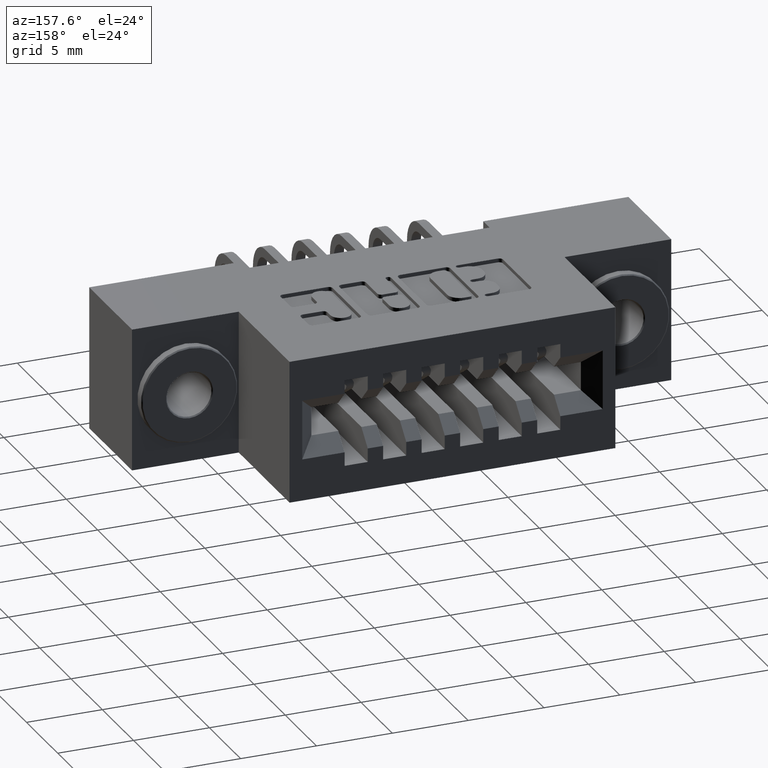
[diagram: clean part render]
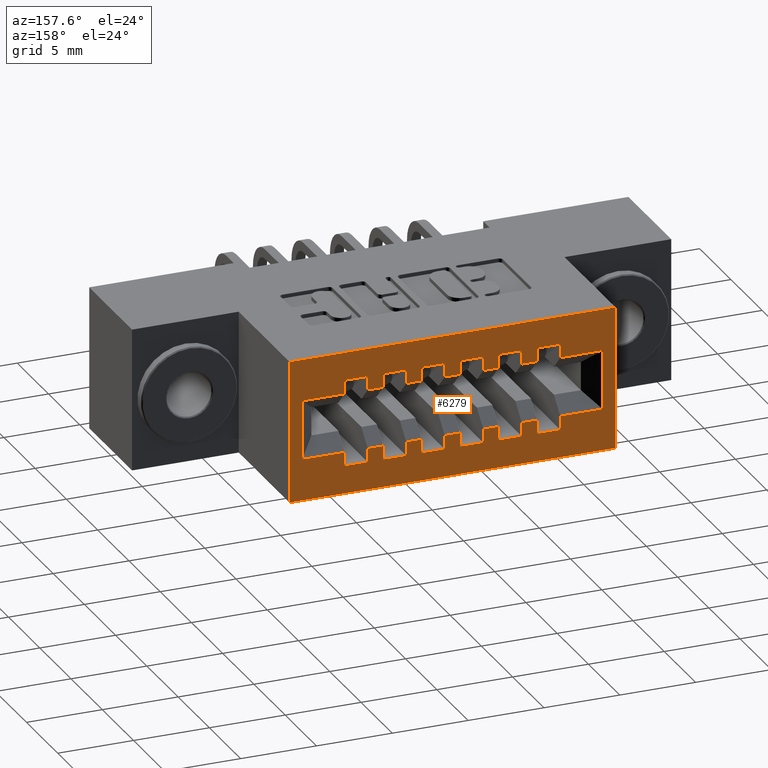
[diagram: same view with one face highlighted and labeled with its STEP entity id]
A machine part, auxiliary view. The second image highlights one B-rep face of the part: STEP entity #6279.
In plain terms, the highlighted planar face has unit normal (0, -1, 0).
Its self-contained STEP definition (entity closure, byte-faithful):
#23 = ORIENTED_EDGE ( 'NONE', *, *, #8180, .T. ) ;
#24 = CARTESIAN_POINT ( 'NONE',  ( 0.5200000000000000200, 0.5899999999999999700, -0.2975000000000000400 ) ) ;
#32 = CARTESIAN_POINT ( 'NONE',  ( 0.4200000000000000400, 0.5899999999999999700, -0.2975000000000000400 ) ) ;
#67 = DIRECTION ( 'NONE',  ( -1.000000000000000000, -0.0000000000000000000, -0.0000000000000000000 ) ) ;
#73 = EDGE_CURVE ( 'NONE', #4876, #8414, #7106, .T. ) ;
#99 = LINE ( 'NONE', #1029, #328 ) ;
#110 = EDGE_CURVE ( 'NONE', #3210, #6223, #1346, .T. ) ;
#115 = EDGE_CURVE ( 'NONE', #4781, #5817, #3236, .T. ) ;
#116 = ORIENTED_EDGE ( 'NONE', *, *, #7833, .F. ) ;
#152 = CARTESIAN_POINT ( 'NONE',  ( 0.0000000000000000000, 0.5899999999999999700, -0.3700000000000000000 ) ) ;
#216 = CARTESIAN_POINT ( 'NONE',  ( 0.4200000000000000400, 0.5899999999999999700, -0.2220000000000001100 ) ) ;
#236 = CARTESIAN_POINT ( 'NONE',  ( 0.4200000000000000400, 0.5899999999999999700, -0.1479999999999999100 ) ) ;
#259 = CARTESIAN_POINT ( 'NONE',  ( 0.0000000000000000000, 0.5899999999999999700, -0.2620000000000002900 ) ) ;
#264 = VECTOR ( 'NONE', #5571, 39.37007874015748100 ) ;
#289 = VECTOR ( 'NONE', #5905, 39.37007874015748100 ) ;
#301 = VECTOR ( 'NONE', #823, 39.37007874015748100 ) ;
#309 = VERTEX_POINT ( 'NONE', #6603 ) ;
#316 = VERTEX_POINT ( 'NONE', #4053 ) ;
#328 = VECTOR ( 'NONE', #1168, 39.37007874015748100 ) ;
#329 = DIRECTION ( 'NONE',  ( -0.0000000000000000000, -0.0000000000000000000, 1.000000000000000000 ) ) ;
#344 = DIRECTION ( 'NONE',  ( -0.0000000000000000000, -0.0000000000000000000, 1.000000000000000000 ) ) ;
#375 = DIRECTION ( 'NONE',  ( -0.0000000000000000000, -0.0000000000000000000, 1.000000000000000000 ) ) ;
#380 = CARTESIAN_POINT ( 'NONE',  ( 0.7199999999999998600, 0.5899999999999999700, -0.2220000000000001400 ) ) ;
#428 = VERTEX_POINT ( 'NONE', #1090 ) ;
#429 = CARTESIAN_POINT ( 'NONE',  ( 0.8799999999999998900, 0.5899999999999999700, -0.2220000000000002000 ) ) ;
#530 = VERTEX_POINT ( 'NONE', #32 ) ;
#534 = VECTOR ( 'NONE', #1487, 39.37007874015748100 ) ;
#536 = VERTEX_POINT ( 'NONE', #8925 ) ;
#545 = LINE ( 'NONE', #3649, #4085 ) ;
#584 = VECTOR ( 'NONE', #2338, 39.37007874015748100 ) ;
#599 = ORIENTED_EDGE ( 'NONE', *, *, #5246, .T. ) ;
#601 = VERTEX_POINT ( 'NONE', #6163 ) ;
#613 = CARTESIAN_POINT ( 'NONE',  ( 0.6200000000000000000, 0.5899999999999999700, -0.2620000000000002900 ) ) ;
#653 = ORIENTED_EDGE ( 'NONE', *, *, #3815, .T. ) ;
#660 = DIRECTION ( 'NONE',  ( 0.0000000000000000000, 0.0000000000000000000, 1.000000000000000000 ) ) ;
#678 = DIRECTION ( 'NONE',  ( 1.000000000000000000, 0.0000000000000000000, 0.0000000000000000000 ) ) ;
#694 = VERTEX_POINT ( 'NONE', #3997 ) ;
#749 = CARTESIAN_POINT ( 'NONE',  ( 0.5200000000000000200, 0.5899999999999999700, -0.1479999999999999100 ) ) ;
#757 = EDGE_CURVE ( 'NONE', #4395, #5679, #7730, .T. ) ;
#758 = VECTOR ( 'NONE', #5631, 39.37007874015748100 ) ;
#759 = CARTESIAN_POINT ( 'NONE',  ( 0.0000000000000000000, 0.5899999999999999700, -0.2620000000000002900 ) ) ;
#813 = EDGE_CURVE ( 'NONE', #7612, #4637, #6894, .T. ) ;
#821 = EDGE_CURVE ( 'NONE', #1638, #6857, #1351, .T. ) ;
#823 = DIRECTION ( 'NONE',  ( 0.0000000000000000000, 0.0000000000000000000, 1.000000000000000000 ) ) ;
#832 = EDGE_CURVE ( 'NONE', #4395, #7187, #8426, .T. ) ;
#849 = VECTOR ( 'NONE', #329, 39.37007874015748100 ) ;
#868 = CARTESIAN_POINT ( 'NONE',  ( 0.6200000000000000000, 0.5899999999999999700, -0.1080000000000000500 ) ) ;
#947 = ORIENTED_EDGE ( 'NONE', *, *, #2589, .T. ) ;
#967 = VECTOR ( 'NONE', #660, 39.37007874015748100 ) ;
#983 = ORIENTED_EDGE ( 'NONE', *, *, #4199, .F. ) ;
#989 = LINE ( 'NONE', #8532, #534 ) ;
#1008 = DIRECTION ( 'NONE',  ( 1.000000000000000000, 0.0000000000000000000, 0.0000000000000000000 ) ) ;
#1010 = VECTOR ( 'NONE', #5092, 39.37007874015748100 ) ;
#1018 = CARTESIAN_POINT ( 'NONE',  ( 0.5800000000000000700, 0.5899999999999999700, -0.1479999999999999100 ) ) ;
#1029 = CARTESIAN_POINT ( 'NONE',  ( 0.7199999999999998600, 0.5899999999999999700, -0.07250000000000002300 ) ) ;
#1031 = CARTESIAN_POINT ( 'NONE',  ( 0.6200000000000000000, 0.5899999999999999700, -0.07250000000000000900 ) ) ;
#1034 = LINE ( 'NONE', #6443, #2735 ) ;
#1043 = LINE ( 'NONE', #1882, #6588 ) ;
#1045 = ORIENTED_EDGE ( 'NONE', *, *, #1803, .T. ) ;
#1050 = DIRECTION ( 'NONE',  ( 1.000000000000000000, -0.0000000000000000000, -0.0000000000000000000 ) ) ;
#1090 = CARTESIAN_POINT ( 'NONE',  ( 0.7799999999999999200, 0.5899999999999999700, -0.07250000000000002300 ) ) ;
#1094 = ORIENTED_EDGE ( 'NONE', *, *, #115, .T. ) ;
#1109 = LINE ( 'NONE', #5786, #6449 ) ;
#1168 = DIRECTION ( 'NONE',  ( 1.000000000000000000, -0.0000000000000000000, -0.0000000000000000000 ) ) ;
#1180 = DIRECTION ( 'NONE',  ( 1.000000000000000000, -0.0000000000000000000, -0.0000000000000000000 ) ) ;
#1221 = DIRECTION ( 'NONE',  ( 0.0000000000000000000, 0.0000000000000000000, 1.000000000000000000 ) ) ;
#1234 = LINE ( 'NONE', #1670, #4738 ) ;
#1246 = AXIS2_PLACEMENT_3D ( 'NONE', #2403, #2304, #2288 ) ;
#1339 = CARTESIAN_POINT ( 'NONE',  ( 0.8199999999999998400, 0.5899999999999999700, -0.07250000000000003700 ) ) ;
#1346 = LINE ( 'NONE', #4886, #6667 ) ;
#1351 = LINE ( 'NONE', #2203, #6672 ) ;
#1366 = CARTESIAN_POINT ( 'NONE',  ( 0.0000000000000000000, 0.5899999999999999700, -0.2620000000000002900 ) ) ;
#1412 = EDGE_CURVE ( 'NONE', #6135, #7302, #2362, .T. ) ;
#1423 = ORIENTED_EDGE ( 'NONE', *, *, #7155, .T. ) ;
#1432 = EDGE_LOOP ( 'NONE', ( #1596, #3708, #5509, #7339 ) ) ;
#1469 = VECTOR ( 'NONE', #6743, 39.37007874015748100 ) ;
#1477 = CARTESIAN_POINT ( 'NONE',  ( 0.6799999999999999400, 0.5899999999999999700, -0.2975000000000001000 ) ) ;
#1487 = DIRECTION ( 'NONE',  ( -1.000000000000000000, 0.0000000000000000000, 0.0000000000000000000 ) ) ;
#1506 = VERTEX_POINT ( 'NONE', #2653 ) ;
#1527 = CARTESIAN_POINT ( 'NONE',  ( 0.2770000000000000200, 0.5899999999999999700, -0.3700000000000000000 ) ) ;
#1548 = VECTOR ( 'NONE', #5280, 39.37007874015748100 ) ;
#1562 = LINE ( 'NONE', #3141, #6887 ) ;
#1564 = VECTOR ( 'NONE', #8660, 39.37007874015748100 ) ;
#1565 = LINE ( 'NONE', #1339, #8628 ) ;
#1566 = CARTESIAN_POINT ( 'NONE',  ( 0.4799999999999999800, 0.5899999999999999700, -0.2975000000000000400 ) ) ;
#1592 = CARTESIAN_POINT ( 'NONE',  ( 0.6200000000000000000, 0.5899999999999999700, -0.2220000000000001400 ) ) ;
#1596 = ORIENTED_EDGE ( 'NONE', *, *, #2661, .T. ) ;
#1615 = LINE ( 'NONE', #152, #8881 ) ;
#1638 = VERTEX_POINT ( 'NONE', #1566 ) ;
#1642 = LINE ( 'NONE', #8309, #5129 ) ;
#1652 = EDGE_CURVE ( 'NONE', #4876, #6741, #2245, .T. ) ;
#1670 = CARTESIAN_POINT ( 'NONE',  ( 0.0000000000000000000, 0.5899999999999999700, -0.2620000000000002900 ) ) ;
#1696 = VECTOR ( 'NONE', #5523, 39.37007874015748100 ) ;
#1752 = EDGE_CURVE ( 'NONE', #6223, #7243, #7085, .T. ) ;
#1756 = CARTESIAN_POINT ( 'NONE',  ( 0.9199999999999999300, 0.5899999999999999700, -0.1080000000000000500 ) ) ;
#1759 = LINE ( 'NONE', #8720, #8801 ) ;
#1766 = VECTOR ( 'NONE', #5024, 39.37007874015748100 ) ;
#1776 = VERTEX_POINT ( 'NONE', #5330 ) ;
#1786 = CARTESIAN_POINT ( 'NONE',  ( 0.8799999999999998900, 0.5899999999999999700, -0.2975000000000001000 ) ) ;
#1803 = EDGE_CURVE ( 'NONE', #7308, #6640, #1109, .T. ) ;
#1854 = DIRECTION ( 'NONE',  ( 0.0000000000000000000, 0.0000000000000000000, 1.000000000000000000 ) ) ;
#1882 = CARTESIAN_POINT ( 'NONE',  ( 0.6200000000000000000, 0.5899999999999999700, -0.1479999999999999400 ) ) ;
#1917 = LINE ( 'NONE', #5505, #1696 ) ;
#1950 = ORIENTED_EDGE ( 'NONE', *, *, #2114, .T. ) ;
#1966 = CARTESIAN_POINT ( 'NONE',  ( 0.6200000000000000000, 0.5899999999999999700, -0.07250000000000000900 ) ) ;
#2008 = CARTESIAN_POINT ( 'NONE',  ( 1.122999999999999800, 0.5899999999999999700, -0.3700000000000001600 ) ) ;
#2041 = CARTESIAN_POINT ( 'NONE',  ( 0.5200000000000000200, 0.5899999999999999700, -0.07249999999999999500 ) ) ;
#2069 = DIRECTION ( 'NONE',  ( 1.000000000000000000, -0.0000000000000000000, -0.0000000000000000000 ) ) ;
#2074 = LINE ( 'NONE', #6704, #7357 ) ;
#2101 = VERTEX_POINT ( 'NONE', #7889 ) ;
#2114 = EDGE_CURVE ( 'NONE', #8591, #6681, #4299, .T. ) ;
#2132 = EDGE_CURVE ( 'NONE', #8937, #5883, #545, .T. ) ;
#2150 = VECTOR ( 'NONE', #1180, 39.37007874015748100 ) ;
#2153 = EDGE_CURVE ( 'NONE', #309, #694, #5886, .T. ) ;
#2165 = DIRECTION ( 'NONE',  ( 1.000000000000000000, -0.0000000000000000000, -0.0000000000000000000 ) ) ;
#2195 = EDGE_CURVE ( 'NONE', #2457, #5363, #7287, .T. ) ;
#2203 = CARTESIAN_POINT ( 'NONE',  ( 0.4799999999999999800, 0.5899999999999999700, -0.2220000000000001100 ) ) ;
#2209 = LINE ( 'NONE', #3502, #264 ) ;
#2223 = ORIENTED_EDGE ( 'NONE', *, *, #3516, .T. ) ;
#2245 = LINE ( 'NONE', #236, #301 ) ;
#2278 = VECTOR ( 'NONE', #7780, 39.37007874015748100 ) ;
#2288 = DIRECTION ( 'NONE',  ( 0.0000000000000000000, -0.0000000000000000000, -1.000000000000000000 ) ) ;
#2297 = ORIENTED_EDGE ( 'NONE', *, *, #7723, .T. ) ;
#2304 = DIRECTION ( 'NONE',  ( 0.0000000000000000000, -1.000000000000000000, 0.0000000000000000000 ) ) ;
#2336 = DIRECTION ( 'NONE',  ( 1.000000000000000000, 0.0000000000000000000, 0.0000000000000000000 ) ) ;
#2338 = DIRECTION ( 'NONE',  ( 3.691686477924679500E-016, 0.0000000000000000000, 1.000000000000000000 ) ) ;
#2345 = ORIENTED_EDGE ( 'NONE', *, *, #6567, .T. ) ;
#2348 = CARTESIAN_POINT ( 'NONE',  ( 0.0000000000000000000, 0.5899999999999999700, -0.1080000000000000500 ) ) ;
#2362 = LINE ( 'NONE', #259, #5785 ) ;
#2403 = CARTESIAN_POINT ( 'NONE',  ( 0.0000000000000000000, 0.5899999999999999700, -0.3700000000000000000 ) ) ;
#2411 = ORIENTED_EDGE ( 'NONE', *, *, #5116, .F. ) ;
#2416 = PLANE ( 'NONE',  #1246 ) ;
#2457 = VERTEX_POINT ( 'NONE', #5788 ) ;
#2485 = VERTEX_POINT ( 'NONE', #3576 ) ;
#2488 = LINE ( 'NONE', #6244, #7725 ) ;
#2508 = LINE ( 'NONE', #7660, #2278 ) ;
#2518 = ORIENTED_EDGE ( 'NONE', *, *, #8457, .F. ) ;
#2523 = CARTESIAN_POINT ( 'NONE',  ( 0.8199999999999998400, 0.5899999999999999700, -0.1479999999999999400 ) ) ;
#2554 = LINE ( 'NONE', #6019, #7977 ) ;
#2556 = DIRECTION ( 'NONE',  ( -1.000000000000000000, 0.0000000000000000000, 0.0000000000000000000 ) ) ;
#2589 = EDGE_CURVE ( 'NONE', #3844, #316, #989, .T. ) ;
#2590 = DIRECTION ( 'NONE',  ( -0.0000000000000000000, -0.0000000000000000000, 1.000000000000000000 ) ) ;
#2629 = VECTOR ( 'NONE', #8717, 39.37007874015748100 ) ;
#2653 = CARTESIAN_POINT ( 'NONE',  ( 1.090000000000000100, 0.5899999999999999700, -0.1080000000000000500 ) ) ;
#2661 = EDGE_CURVE ( 'NONE', #309, #8783, #1759, .T. ) ;
#2669 = LINE ( 'NONE', #6729, #758 ) ;
#2714 = CARTESIAN_POINT ( 'NONE',  ( 0.0000000000000000000, 0.5899999999999999700, -0.1080000000000000500 ) ) ;
#2735 = VECTOR ( 'NONE', #6448, 39.37007874015748100 ) ;
#2769 = DIRECTION ( 'NONE',  ( -0.0000000000000000000, -0.0000000000000000000, 1.000000000000000000 ) ) ;
#2818 = CARTESIAN_POINT ( 'NONE',  ( 0.9799999999999999800, 0.5899999999999999700, -0.2975000000000001000 ) ) ;
#2849 = LINE ( 'NONE', #380, #6055 ) ;
#2863 = CARTESIAN_POINT ( 'NONE',  ( 0.8799999999999998900, 0.5899999999999999700, -0.2620000000000002900 ) ) ;
#2919 = EDGE_CURVE ( 'NONE', #7283, #5817, #1642, .T. ) ;
#3007 = DIRECTION ( 'NONE',  ( -1.000000000000000000, 0.0000000000000000000, 0.0000000000000000000 ) ) ;
#3033 = VECTOR ( 'NONE', #5485, 39.37007874015748100 ) ;
#3137 = VECTOR ( 'NONE', #5244, 39.37007874015748100 ) ;
#3141 = CARTESIAN_POINT ( 'NONE',  ( 0.4200000000000000400, 0.5899999999999999700, -0.2975000000000000400 ) ) ;
#3168 = ORIENTED_EDGE ( 'NONE', *, *, #821, .T. ) ;
#3170 = DIRECTION ( 'NONE',  ( 0.0000000000000000000, 0.0000000000000000000, 1.000000000000000000 ) ) ;
#3210 = VERTEX_POINT ( 'NONE', #4167 ) ;
#3224 = CARTESIAN_POINT ( 'NONE',  ( 0.8799999999999998900, 0.5899999999999999700, -0.07250000000000003700 ) ) ;
#3234 = VECTOR ( 'NONE', #3170, 39.37007874015748100 ) ;
#3236 = LINE ( 'NONE', #6419, #3033 ) ;
#3240 = DIRECTION ( 'NONE',  ( 1.000000000000000000, -0.0000000000000000000, -0.0000000000000000000 ) ) ;
#3254 = EDGE_CURVE ( 'NONE', #601, #2457, #2554, .T. ) ;
#3275 = EDGE_CURVE ( 'NONE', #7032, #5979, #4168, .T. ) ;
#3286 = CARTESIAN_POINT ( 'NONE',  ( 0.0000000000000000000, 0.5899999999999999700, -0.1080000000000000500 ) ) ;
#3290 = VECTOR ( 'NONE', #3007, 39.37007874015748100 ) ;
#3383 = VERTEX_POINT ( 'NONE', #7298 ) ;
#3388 = FACE_BOUND ( 'NONE', #7579, .T. ) ;
#3394 = VECTOR ( 'NONE', #5720, 39.37007874015748100 ) ;
#3396 = ORIENTED_EDGE ( 'NONE', *, *, #5875, .F. ) ;
#3463 = DIRECTION ( 'NONE',  ( 0.0000000000000000000, 0.0000000000000000000, 1.000000000000000000 ) ) ;
#3469 = VECTOR ( 'NONE', #2069, 39.37007874015748100 ) ;
#3494 = EDGE_CURVE ( 'NONE', #5363, #5876, #8283, .T. ) ;
#3502 = CARTESIAN_POINT ( 'NONE',  ( 0.6200000000000000000, 0.5899999999999999700, -0.2975000000000001000 ) ) ;
#3506 = ORIENTED_EDGE ( 'NONE', *, *, #7181, .F. ) ;
#3510 = DIRECTION ( 'NONE',  ( 1.000000000000000000, -0.0000000000000000000, -0.0000000000000000000 ) ) ;
#3516 = EDGE_CURVE ( 'NONE', #6808, #5494, #2209, .T. ) ;
#3545 = CARTESIAN_POINT ( 'NONE',  ( 0.6799999999999999400, 0.5899999999999999700, -0.2620000000000002900 ) ) ;
#3562 = CARTESIAN_POINT ( 'NONE',  ( 1.090000000000000100, 0.5899999999999999700, -0.3700000000000000000 ) ) ;
#3574 = DIRECTION ( 'NONE',  ( 0.0000000000000000000, 0.0000000000000000000, 1.000000000000000000 ) ) ;
#3576 = CARTESIAN_POINT ( 'NONE',  ( 0.3099999999999998300, 0.5899999999999999700, -0.2620000000000002900 ) ) ;
#3600 = VERTEX_POINT ( 'NONE', #8840 ) ;
#3612 = ORIENTED_EDGE ( 'NONE', *, *, #4249, .T. ) ;
#3649 = CARTESIAN_POINT ( 'NONE',  ( 0.0000000000000000000, 0.5899999999999999700, -0.1080000000000000500 ) ) ;
#3660 = EDGE_CURVE ( 'NONE', #7308, #1776, #6414, .T. ) ;
#3708 = ORIENTED_EDGE ( 'NONE', *, *, #7940, .F. ) ;
#3717 = ORIENTED_EDGE ( 'NONE', *, *, #1652, .F. ) ;
#3787 = VERTEX_POINT ( 'NONE', #5072 ) ;
#3815 = EDGE_CURVE ( 'NONE', #1506, #4781, #5119, .T. ) ;
#3821 = DIRECTION ( 'NONE',  ( 0.0000000000000000000, 0.0000000000000000000, 1.000000000000000000 ) ) ;
#3844 = VERTEX_POINT ( 'NONE', #868 ) ;
#3873 = EDGE_CURVE ( 'NONE', #316, #4637, #4701, .T. ) ;
#3919 = ORIENTED_EDGE ( 'NONE', *, *, #73, .T. ) ;
#3997 = CARTESIAN_POINT ( 'NONE',  ( 0.2770000000000000200, 0.5899999999999999700, -0.3700000000000000000 ) ) ;
#4005 = LINE ( 'NONE', #24, #2150 ) ;
#4053 = CARTESIAN_POINT ( 'NONE',  ( 0.5800000000000000700, 0.5899999999999999700, -0.1080000000000000500 ) ) ;
#4069 = ORIENTED_EDGE ( 'NONE', *, *, #6822, .T. ) ;
#4074 = CARTESIAN_POINT ( 'NONE',  ( 0.7199999999999998600, 0.5899999999999999700, -0.2620000000000002900 ) ) ;
#4085 = VECTOR ( 'NONE', #8437, 39.37007874015748100 ) ;
#4089 = CARTESIAN_POINT ( 'NONE',  ( 0.8199999999999998400, 0.5899999999999999700, -0.1080000000000000500 ) ) ;
#4101 = EDGE_CURVE ( 'NONE', #530, #5942, #6406, .T. ) ;
#4130 = ORIENTED_EDGE ( 'NONE', *, *, #2132, .T. ) ;
#4167 = CARTESIAN_POINT ( 'NONE',  ( 0.9199999999999999300, 0.5899999999999999700, -0.2975000000000001000 ) ) ;
#4168 = LINE ( 'NONE', #4917, #5753 ) ;
#4199 = EDGE_CURVE ( 'NONE', #3600, #5876, #2074, .T. ) ;
#4222 = CARTESIAN_POINT ( 'NONE',  ( 0.5200000000000000200, 0.5899999999999999700, -0.07249999999999999500 ) ) ;
#4232 = CARTESIAN_POINT ( 'NONE',  ( 0.7799999999999999200, 0.5899999999999999700, -0.2620000000000002900 ) ) ;
#4238 = ORIENTED_EDGE ( 'NONE', *, *, #6320, .F. ) ;
#4249 = EDGE_CURVE ( 'NONE', #7187, #3383, #6710, .T. ) ;
#4266 = VECTOR ( 'NONE', #8672, 39.37007874015748100 ) ;
#4299 = LINE ( 'NONE', #4387, #6118 ) ;
#4313 = VECTOR ( 'NONE', #1221, 39.37007874015748100 ) ;
#4387 = CARTESIAN_POINT ( 'NONE',  ( 0.5800000000000000700, 0.5899999999999999700, -0.2220000000000001100 ) ) ;
#4395 = VERTEX_POINT ( 'NONE', #5762 ) ;
#4403 = EDGE_CURVE ( 'NONE', #3210, #6813, #2669, .T. ) ;
#4423 = LINE ( 'NONE', #1592, #4642 ) ;
#4492 = ORIENTED_EDGE ( 'NONE', *, *, #3254, .T. ) ;
#4516 = DIRECTION ( 'NONE',  ( -1.000000000000000000, 0.0000000000000000000, 0.0000000000000000000 ) ) ;
#4587 = VECTOR ( 'NONE', #3821, 39.37007874015748100 ) ;
#4614 = CARTESIAN_POINT ( 'NONE',  ( 0.4200000000000000400, 0.5899999999999999700, -0.1080000000000000500 ) ) ;
#4637 = VERTEX_POINT ( 'NONE', #8206 ) ;
#4642 = VECTOR ( 'NONE', #2590, 39.37007874015748100 ) ;
#4681 = VECTOR ( 'NONE', #3574, 39.37007874015748100 ) ;
#4682 = ORIENTED_EDGE ( 'NONE', *, *, #3873, .T. ) ;
#4701 = LINE ( 'NONE', #1018, #967 ) ;
#4738 = VECTOR ( 'NONE', #5101, 39.37007874015748100 ) ;
#4774 = ORIENTED_EDGE ( 'NONE', *, *, #6785, .T. ) ;
#4781 = VERTEX_POINT ( 'NONE', #5340 ) ;
#4790 = EDGE_CURVE ( 'NONE', #6681, #8486, #6725, .T. ) ;
#4822 = CARTESIAN_POINT ( 'NONE',  ( 0.8199999999999998400, 0.5899999999999999700, -0.2975000000000001000 ) ) ;
#4859 = VECTOR ( 'NONE', #2556, 39.37007874015748100 ) ;
#4876 = VERTEX_POINT ( 'NONE', #4614 ) ;
#4886 = CARTESIAN_POINT ( 'NONE',  ( 0.9199999999999999300, 0.5899999999999999700, -0.2975000000000001000 ) ) ;
#4907 = CARTESIAN_POINT ( 'NONE',  ( 0.9799999999999999800, 0.5899999999999999700, -0.2220000000000002000 ) ) ;
#4917 = CARTESIAN_POINT ( 'NONE',  ( 0.0000000000000000000, 0.5899999999999999700, -0.1080000000000000500 ) ) ;
#4939 = ORIENTED_EDGE ( 'NONE', *, *, #8732, .T. ) ;
#4941 = DIRECTION ( 'NONE',  ( -0.0000000000000000000, -0.0000000000000000000, 1.000000000000000000 ) ) ;
#4999 = ORIENTED_EDGE ( 'NONE', *, *, #757, .F. ) ;
#5001 = CARTESIAN_POINT ( 'NONE',  ( 0.4799999999999999800, 0.5899999999999999700, -0.1080000000000000500 ) ) ;
#5024 = DIRECTION ( 'NONE',  ( -0.0000000000000000000, -0.0000000000000000000, 1.000000000000000000 ) ) ;
#5048 = VERTEX_POINT ( 'NONE', #1966 ) ;
#5071 = LINE ( 'NONE', #6030, #3234 ) ;
#5072 = CARTESIAN_POINT ( 'NONE',  ( 0.4799999999999999800, 0.5899999999999999700, -0.07249999999999998100 ) ) ;
#5092 = DIRECTION ( 'NONE',  ( 1.000000000000000000, -0.0000000000000000000, -0.0000000000000000000 ) ) ;
#5101 = DIRECTION ( 'NONE',  ( 1.000000000000000000, 0.0000000000000000000, 0.0000000000000000000 ) ) ;
#5105 = ORIENTED_EDGE ( 'NONE', *, *, #3275, .T. ) ;
#5113 = VECTOR ( 'NONE', #7920, 39.37007874015748100 ) ;
#5114 = LINE ( 'NONE', #7458, #8269 ) ;
#5116 = EDGE_CURVE ( 'NONE', #5048, #3383, #5970, .T. ) ;
#5119 = LINE ( 'NONE', #3286, #3290 ) ;
#5129 = VECTOR ( 'NONE', #3510, 39.37007874015748100 ) ;
#5133 = ORIENTED_EDGE ( 'NONE', *, *, #4403, .F. ) ;
#5167 = CARTESIAN_POINT ( 'NONE',  ( 0.4200000000000000400, 0.5899999999999999700, -0.2620000000000002900 ) ) ;
#5209 = EDGE_CURVE ( 'NONE', #2101, #694, #1615, .T. ) ;
#5244 = DIRECTION ( 'NONE',  ( 0.0000000000000000000, 0.0000000000000000000, 1.000000000000000000 ) ) ;
#5246 = EDGE_CURVE ( 'NONE', #5883, #5416, #5114, .T. ) ;
#5273 = CARTESIAN_POINT ( 'NONE',  ( 0.0000000000000000000, 0.5899999999999999700, -0.2620000000000002900 ) ) ;
#5280 = DIRECTION ( 'NONE',  ( -0.0000000000000000000, -0.0000000000000000000, 1.000000000000000000 ) ) ;
#5284 = DIRECTION ( 'NONE',  ( 1.000000000000000000, 0.0000000000000000000, 0.0000000000000000000 ) ) ;
#5288 = LINE ( 'NONE', #759, #6917 ) ;
#5312 = VERTEX_POINT ( 'NONE', #5572 ) ;
#5330 = CARTESIAN_POINT ( 'NONE',  ( 0.8199999999999998400, 0.5899999999999999700, -0.07250000000000003700 ) ) ;
#5340 = CARTESIAN_POINT ( 'NONE',  ( 0.9799999999999999800, 0.5899999999999999700, -0.1080000000000000500 ) ) ;
#5363 = VERTEX_POINT ( 'NONE', #4232 ) ;
#5416 = VERTEX_POINT ( 'NONE', #3224 ) ;
#5485 = DIRECTION ( 'NONE',  ( 0.0000000000000000000, 0.0000000000000000000, 1.000000000000000000 ) ) ;
#5488 = VECTOR ( 'NONE', #3463, 39.37007874015748100 ) ;
#5494 = VERTEX_POINT ( 'NONE', #1477 ) ;
#5499 = CARTESIAN_POINT ( 'NONE',  ( 0.6799999999999999400, 0.5899999999999999700, -0.1479999999999999400 ) ) ;
#5505 = CARTESIAN_POINT ( 'NONE',  ( 0.0000000000000000000, 0.5899999999999999700, -0.2620000000000002900 ) ) ;
#5509 = ORIENTED_EDGE ( 'NONE', *, *, #5209, .T. ) ;
#5523 = DIRECTION ( 'NONE',  ( 1.000000000000000000, 0.0000000000000000000, 0.0000000000000000000 ) ) ;
#5553 = ORIENTED_EDGE ( 'NONE', *, *, #1752, .T. ) ;
#5565 = CARTESIAN_POINT ( 'NONE',  ( 0.8799999999999998900, 0.5899999999999999700, -0.1080000000000000500 ) ) ;
#5571 = DIRECTION ( 'NONE',  ( 1.000000000000000000, -0.0000000000000000000, -0.0000000000000000000 ) ) ;
#5572 = CARTESIAN_POINT ( 'NONE',  ( 0.5200000000000000200, 0.5899999999999999700, -0.2975000000000000400 ) ) ;
#5603 = CARTESIAN_POINT ( 'NONE',  ( 0.8199999999999998400, 0.5899999999999999700, -0.2620000000000002900 ) ) ;
#5614 = VERTEX_POINT ( 'NONE', #8510 ) ;
#5623 = ORIENTED_EDGE ( 'NONE', *, *, #4790, .T. ) ;
#5631 = DIRECTION ( 'NONE',  ( -0.0000000000000000000, -0.0000000000000000000, 1.000000000000000000 ) ) ;
#5666 = CARTESIAN_POINT ( 'NONE',  ( 0.5200000000000000200, 0.5899999999999999700, -0.2220000000000001100 ) ) ;
#5679 = VERTEX_POINT ( 'NONE', #7349 ) ;
#5697 = CARTESIAN_POINT ( 'NONE',  ( 0.7799999999999999200, 0.5899999999999999700, -0.2220000000000001400 ) ) ;
#5720 = DIRECTION ( 'NONE',  ( -0.0000000000000000000, -0.0000000000000000000, 1.000000000000000000 ) ) ;
#5753 = VECTOR ( 'NONE', #4516, 39.37007874015748100 ) ;
#5762 = CARTESIAN_POINT ( 'NONE',  ( 0.7199999999999998600, 0.5899999999999999700, -0.1080000000000000500 ) ) ;
#5785 = VECTOR ( 'NONE', #678, 39.37007874015748100 ) ;
#5786 = CARTESIAN_POINT ( 'NONE',  ( 0.0000000000000000000, 0.5899999999999999700, -0.1080000000000000500 ) ) ;
#5788 = CARTESIAN_POINT ( 'NONE',  ( 0.7799999999999999200, 0.5899999999999999700, -0.2975000000000001000 ) ) ;
#5817 = VERTEX_POINT ( 'NONE', #6178 ) ;
#5875 = EDGE_CURVE ( 'NONE', #5312, #536, #7030, .T. ) ;
#5876 = VERTEX_POINT ( 'NONE', #5603 ) ;
#5883 = VERTEX_POINT ( 'NONE', #5565 ) ;
#5886 = LINE ( 'NONE', #1527, #289 ) ;
#5905 = DIRECTION ( 'NONE',  ( -0.0000000000000000000, -0.0000000000000000000, -1.000000000000000000 ) ) ;
#5942 = VERTEX_POINT ( 'NONE', #5167 ) ;
#5953 = ORIENTED_EDGE ( 'NONE', *, *, #8721, .T. ) ;
#5968 = CARTESIAN_POINT ( 'NONE',  ( 0.7199999999999998600, 0.5899999999999999700, -0.1479999999999999400 ) ) ;
#5970 = LINE ( 'NONE', #1031, #7571 ) ;
#5979 = VERTEX_POINT ( 'NONE', #5001 ) ;
#6019 = CARTESIAN_POINT ( 'NONE',  ( 0.7199999999999998600, 0.5899999999999999700, -0.2975000000000001000 ) ) ;
#6030 = CARTESIAN_POINT ( 'NONE',  ( 0.9199999999999999300, 0.5899999999999999700, -0.1479999999999999600 ) ) ;
#6055 = VECTOR ( 'NONE', #344, 39.37007874015748100 ) ;
#6107 = ORIENTED_EDGE ( 'NONE', *, *, #6584, .F. ) ;
#6118 = VECTOR ( 'NONE', #4941, 39.37007874015748100 ) ;
#6119 = EDGE_CURVE ( 'NONE', #5614, #1506, #6495, .T. ) ;
#6132 = LINE ( 'NONE', #8327, #4313 ) ;
#6135 = VERTEX_POINT ( 'NONE', #3545 ) ;
#6163 = CARTESIAN_POINT ( 'NONE',  ( 0.7199999999999998600, 0.5899999999999999700, -0.2975000000000001000 ) ) ;
#6170 = DIRECTION ( 'NONE',  ( -1.000000000000000000, 0.0000000000000000000, 0.0000000000000000000 ) ) ;
#6178 = CARTESIAN_POINT ( 'NONE',  ( 0.9799999999999999800, 0.5899999999999999700, -0.07250000000000005100 ) ) ;
#6215 = VERTEX_POINT ( 'NONE', #2863 ) ;
#6223 = VERTEX_POINT ( 'NONE', #2818 ) ;
#6242 = DIRECTION ( 'NONE',  ( 1.000000000000000000, -0.0000000000000000000, -0.0000000000000000000 ) ) ;
#6244 = CARTESIAN_POINT ( 'NONE',  ( 0.3099999999999998300, 0.5899999999999999700, -0.3700000000000000000 ) ) ;
#6279 = ADVANCED_FACE ( 'NONE', ( #8538, #3388 ), #2416, .F. ) ;
#6320 = EDGE_CURVE ( 'NONE', #3844, #5048, #1043, .T. ) ;
#6326 = ORIENTED_EDGE ( 'NONE', *, *, #2195, .T. ) ;
#6351 = CARTESIAN_POINT ( 'NONE',  ( 0.5200000000000000200, 0.5899999999999999700, -0.1080000000000000500 ) ) ;
#6406 = LINE ( 'NONE', #216, #849 ) ;
#6414 = LINE ( 'NONE', #2523, #4587 ) ;
#6419 = CARTESIAN_POINT ( 'NONE',  ( 0.9799999999999999800, 0.5899999999999999700, -0.1479999999999999600 ) ) ;
#6441 = DIRECTION ( 'NONE',  ( 0.0000000000000000000, 0.0000000000000000000, -1.000000000000000000 ) ) ;
#6443 = CARTESIAN_POINT ( 'NONE',  ( 0.7799999999999999200, 0.5899999999999999700, -0.1479999999999999400 ) ) ;
#6448 = DIRECTION ( 'NONE',  ( 0.0000000000000000000, 0.0000000000000000000, 1.000000000000000000 ) ) ;
#6449 = VECTOR ( 'NONE', #6170, 39.37007874015748100 ) ;
#6477 = EDGE_CURVE ( 'NONE', #6857, #536, #5288, .T. ) ;
#6495 = LINE ( 'NONE', #3562, #4681 ) ;
#6521 = EDGE_CURVE ( 'NONE', #7961, #6215, #8445, .T. ) ;
#6552 = LINE ( 'NONE', #4822, #1010 ) ;
#6567 = EDGE_CURVE ( 'NONE', #7243, #5614, #8044, .T. ) ;
#6584 = EDGE_CURVE ( 'NONE', #601, #7302, #2849, .T. ) ;
#6588 = VECTOR ( 'NONE', #1854, 39.37007874015748100 ) ;
#6590 = ORIENTED_EDGE ( 'NONE', *, *, #7982, .F. ) ;
#6603 = CARTESIAN_POINT ( 'NONE',  ( 0.2770000000000000200, 0.5899999999999999700, 0.0000000000000000000 ) ) ;
#6640 = VERTEX_POINT ( 'NONE', #7955 ) ;
#6667 = VECTOR ( 'NONE', #6242, 39.37007874015748100 ) ;
#6672 = VECTOR ( 'NONE', #2769, 39.37007874015748100 ) ;
#6681 = VERTEX_POINT ( 'NONE', #8152 ) ;
#6691 = VECTOR ( 'NONE', #375, 39.37007874015748100 ) ;
#6699 = ORIENTED_EDGE ( 'NONE', *, *, #8271, .F. ) ;
#6704 = CARTESIAN_POINT ( 'NONE',  ( 0.8199999999999998400, 0.5899999999999999700, -0.2220000000000002000 ) ) ;
#6710 = LINE ( 'NONE', #5499, #5113 ) ;
#6725 = LINE ( 'NONE', #5273, #8476 ) ;
#6729 = CARTESIAN_POINT ( 'NONE',  ( 0.9199999999999999300, 0.5899999999999999700, -0.2220000000000002000 ) ) ;
#6741 = VERTEX_POINT ( 'NONE', #7136 ) ;
#6743 = DIRECTION ( 'NONE',  ( 1.000000000000000000, -0.0000000000000000000, -0.0000000000000000000 ) ) ;
#6785 = EDGE_CURVE ( 'NONE', #6640, #428, #1034, .T. ) ;
#6805 = CARTESIAN_POINT ( 'NONE',  ( 0.6799999999999999400, 0.5899999999999999700, -0.1080000000000000500 ) ) ;
#6808 = VERTEX_POINT ( 'NONE', #7345 ) ;
#6813 = VERTEX_POINT ( 'NONE', #7721 ) ;
#6818 = ORIENTED_EDGE ( 'NONE', *, *, #6477, .T. ) ;
#6822 = EDGE_CURVE ( 'NONE', #5494, #6135, #2508, .T. ) ;
#6827 = CARTESIAN_POINT ( 'NONE',  ( 0.4200000000000000400, 0.5899999999999999700, -0.07249999999999998100 ) ) ;
#6828 = DIRECTION ( 'NONE',  ( -0.0000000000000000000, -0.0000000000000000000, 1.000000000000000000 ) ) ;
#6857 = VERTEX_POINT ( 'NONE', #7596 ) ;
#6887 = VECTOR ( 'NONE', #3240, 39.37007874015748100 ) ;
#6894 = LINE ( 'NONE', #2041, #3469 ) ;
#6917 = VECTOR ( 'NONE', #1008, 39.37007874015748100 ) ;
#6929 = ORIENTED_EDGE ( 'NONE', *, *, #8756, .T. ) ;
#6950 = CARTESIAN_POINT ( 'NONE',  ( 1.122999999999999800, 0.5899999999999999700, -1.205664773760568800E-016 ) ) ;
#7030 = LINE ( 'NONE', #5666, #3394 ) ;
#7032 = VERTEX_POINT ( 'NONE', #6351 ) ;
#7046 = CARTESIAN_POINT ( 'NONE',  ( 0.9799999999999999800, 0.5899999999999999700, -0.2620000000000002900 ) ) ;
#7073 = ORIENTED_EDGE ( 'NONE', *, *, #2919, .F. ) ;
#7085 = LINE ( 'NONE', #4907, #1548 ) ;
#7106 = LINE ( 'NONE', #2348, #1564 ) ;
#7136 = CARTESIAN_POINT ( 'NONE',  ( 0.4200000000000000400, 0.5899999999999999700, -0.07249999999999998100 ) ) ;
#7155 = EDGE_CURVE ( 'NONE', #6215, #6813, #1917, .T. ) ;
#7180 = ORIENTED_EDGE ( 'NONE', *, *, #110, .T. ) ;
#7181 = EDGE_CURVE ( 'NONE', #6741, #3787, #8744, .T. ) ;
#7187 = VERTEX_POINT ( 'NONE', #6805 ) ;
#7243 = VERTEX_POINT ( 'NONE', #7046 ) ;
#7255 = CARTESIAN_POINT ( 'NONE',  ( 0.9199999999999999300, 0.5899999999999999700, -0.07250000000000005100 ) ) ;
#7283 = VERTEX_POINT ( 'NONE', #7255 ) ;
#7287 = LINE ( 'NONE', #5697, #1766 ) ;
#7298 = CARTESIAN_POINT ( 'NONE',  ( 0.6799999999999999400, 0.5899999999999999700, -0.07250000000000000900 ) ) ;
#7301 = DIRECTION ( 'NONE',  ( 0.0000000000000000000, 0.0000000000000000000, 1.000000000000000000 ) ) ;
#7302 = VERTEX_POINT ( 'NONE', #4074 ) ;
#7308 = VERTEX_POINT ( 'NONE', #4089 ) ;
#7339 = ORIENTED_EDGE ( 'NONE', *, *, #2153, .F. ) ;
#7345 = CARTESIAN_POINT ( 'NONE',  ( 0.6200000000000000000, 0.5899999999999999700, -0.2975000000000001000 ) ) ;
#7349 = CARTESIAN_POINT ( 'NONE',  ( 0.7199999999999998600, 0.5899999999999999700, -0.07250000000000002300 ) ) ;
#7357 = VECTOR ( 'NONE', #6828, 39.37007874015748100 ) ;
#7450 = ORIENTED_EDGE ( 'NONE', *, *, #7917, .F. ) ;
#7458 = CARTESIAN_POINT ( 'NONE',  ( 0.8799999999999998900, 0.5899999999999999700, -0.1479999999999999400 ) ) ;
#7571 = VECTOR ( 'NONE', #1050, 39.37007874015748100 ) ;
#7579 = EDGE_LOOP ( 'NONE', ( #116, #4130, #599, #2518, #7947, #1045, #4774, #6590, #4999, #8760, #3612, #2411, #4238, #947, #4682, #8252, #6699, #5105, #6929, #3506, #3717, #3919, #2297, #5953, #7761, #8359, #3168, #6818, #3396, #23, #1950, #5623, #7450, #2223, #4069, #7691, #6107, #4492, #6326, #8095, #983, #4939, #8488, #1423, #5133, #7180, #5553, #2345, #7799, #653, #1094, #7073 ) ) ;
#7596 = CARTESIAN_POINT ( 'NONE',  ( 0.4799999999999999800, 0.5899999999999999700, -0.2620000000000002900 ) ) ;
#7612 = VERTEX_POINT ( 'NONE', #4222 ) ;
#7660 = CARTESIAN_POINT ( 'NONE',  ( 0.6799999999999999400, 0.5899999999999999700, -0.2220000000000001400 ) ) ;
#7691 = ORIENTED_EDGE ( 'NONE', *, *, #1412, .T. ) ;
#7721 = CARTESIAN_POINT ( 'NONE',  ( 0.9199999999999999300, 0.5899999999999999700, -0.2620000000000002900 ) ) ;
#7723 = EDGE_CURVE ( 'NONE', #8414, #2485, #2488, .T. ) ;
#7725 = VECTOR ( 'NONE', #6441, 39.37007874015748100 ) ;
#7730 = LINE ( 'NONE', #5968, #5488 ) ;
#7737 = LINE ( 'NONE', #2008, #584 ) ;
#7761 = ORIENTED_EDGE ( 'NONE', *, *, #4101, .F. ) ;
#7780 = DIRECTION ( 'NONE',  ( -0.0000000000000000000, -0.0000000000000000000, 1.000000000000000000 ) ) ;
#7799 = ORIENTED_EDGE ( 'NONE', *, *, #6119, .T. ) ;
#7833 = EDGE_CURVE ( 'NONE', #8937, #7283, #5071, .T. ) ;
#7841 = EDGE_CURVE ( 'NONE', #530, #1638, #1562, .T. ) ;
#7889 = CARTESIAN_POINT ( 'NONE',  ( 1.122999999999999800, 0.5899999999999999700, -0.3700000000000000000 ) ) ;
#7917 = EDGE_CURVE ( 'NONE', #6808, #8486, #4423, .T. ) ;
#7920 = DIRECTION ( 'NONE',  ( 0.0000000000000000000, 0.0000000000000000000, 1.000000000000000000 ) ) ;
#7940 = EDGE_CURVE ( 'NONE', #2101, #8783, #7737, .T. ) ;
#7947 = ORIENTED_EDGE ( 'NONE', *, *, #3660, .F. ) ;
#7955 = CARTESIAN_POINT ( 'NONE',  ( 0.7799999999999999200, 0.5899999999999999700, -0.1080000000000000500 ) ) ;
#7961 = VERTEX_POINT ( 'NONE', #1786 ) ;
#7977 = VECTOR ( 'NONE', #8600, 39.37007874015748100 ) ;
#7982 = EDGE_CURVE ( 'NONE', #5679, #428, #99, .T. ) ;
#8044 = LINE ( 'NONE', #8897, #2629 ) ;
#8095 = ORIENTED_EDGE ( 'NONE', *, *, #3494, .T. ) ;
#8152 = CARTESIAN_POINT ( 'NONE',  ( 0.5800000000000000700, 0.5899999999999999700, -0.2620000000000002900 ) ) ;
#8180 = EDGE_CURVE ( 'NONE', #5312, #8591, #4005, .T. ) ;
#8206 = CARTESIAN_POINT ( 'NONE',  ( 0.5800000000000000700, 0.5899999999999999700, -0.07249999999999999500 ) ) ;
#8252 = ORIENTED_EDGE ( 'NONE', *, *, #813, .F. ) ;
#8269 = VECTOR ( 'NONE', #7301, 39.37007874015748100 ) ;
#8271 = EDGE_CURVE ( 'NONE', #7032, #7612, #8524, .T. ) ;
#8283 = LINE ( 'NONE', #1366, #4266 ) ;
#8309 = CARTESIAN_POINT ( 'NONE',  ( 0.9199999999999999300, 0.5899999999999999700, -0.07250000000000005100 ) ) ;
#8327 = CARTESIAN_POINT ( 'NONE',  ( 0.4799999999999999800, 0.5899999999999999700, -0.1479999999999999100 ) ) ;
#8351 = CARTESIAN_POINT ( 'NONE',  ( 0.5800000000000000700, 0.5899999999999999700, -0.2975000000000000400 ) ) ;
#8359 = ORIENTED_EDGE ( 'NONE', *, *, #7841, .T. ) ;
#8414 = VERTEX_POINT ( 'NONE', #8487 ) ;
#8426 = LINE ( 'NONE', #2714, #4859 ) ;
#8437 = DIRECTION ( 'NONE',  ( -1.000000000000000000, 0.0000000000000000000, 0.0000000000000000000 ) ) ;
#8445 = LINE ( 'NONE', #429, #6691 ) ;
#8457 = EDGE_CURVE ( 'NONE', #1776, #5416, #1565, .T. ) ;
#8476 = VECTOR ( 'NONE', #5284, 39.37007874015748100 ) ;
#8486 = VERTEX_POINT ( 'NONE', #613 ) ;
#8487 = CARTESIAN_POINT ( 'NONE',  ( 0.3099999999999998300, 0.5899999999999999700, -0.1080000000000000500 ) ) ;
#8488 = ORIENTED_EDGE ( 'NONE', *, *, #6521, .T. ) ;
#8510 = CARTESIAN_POINT ( 'NONE',  ( 1.090000000000000100, 0.5899999999999999700, -0.2620000000000002900 ) ) ;
#8524 = LINE ( 'NONE', #749, #3137 ) ;
#8532 = CARTESIAN_POINT ( 'NONE',  ( 0.0000000000000000000, 0.5899999999999999700, -0.1080000000000000500 ) ) ;
#8538 = FACE_OUTER_BOUND ( 'NONE', #1432, .T. ) ;
#8591 = VERTEX_POINT ( 'NONE', #8351 ) ;
#8600 = DIRECTION ( 'NONE',  ( 1.000000000000000000, -0.0000000000000000000, -0.0000000000000000000 ) ) ;
#8628 = VECTOR ( 'NONE', #2165, 39.37007874015748100 ) ;
#8660 = DIRECTION ( 'NONE',  ( -1.000000000000000000, 0.0000000000000000000, 0.0000000000000000000 ) ) ;
#8672 = DIRECTION ( 'NONE',  ( 1.000000000000000000, 0.0000000000000000000, 0.0000000000000000000 ) ) ;
#8717 = DIRECTION ( 'NONE',  ( 1.000000000000000000, 0.0000000000000000000, 0.0000000000000000000 ) ) ;
#8720 = CARTESIAN_POINT ( 'NONE',  ( 0.0000000000000000000, 0.5899999999999999700, 0.0000000000000000000 ) ) ;
#8721 = EDGE_CURVE ( 'NONE', #2485, #5942, #1234, .T. ) ;
#8732 = EDGE_CURVE ( 'NONE', #3600, #7961, #6552, .T. ) ;
#8744 = LINE ( 'NONE', #6827, #1469 ) ;
#8756 = EDGE_CURVE ( 'NONE', #5979, #3787, #6132, .T. ) ;
#8760 = ORIENTED_EDGE ( 'NONE', *, *, #832, .T. ) ;
#8783 = VERTEX_POINT ( 'NONE', #6950 ) ;
#8801 = VECTOR ( 'NONE', #2336, 39.37007874015748100 ) ;
#8840 = CARTESIAN_POINT ( 'NONE',  ( 0.8199999999999998400, 0.5899999999999999700, -0.2975000000000001000 ) ) ;
#8881 = VECTOR ( 'NONE', #67, 39.37007874015748100 ) ;
#8897 = CARTESIAN_POINT ( 'NONE',  ( 0.0000000000000000000, 0.5899999999999999700, -0.2620000000000002900 ) ) ;
#8925 = CARTESIAN_POINT ( 'NONE',  ( 0.5200000000000000200, 0.5899999999999999700, -0.2620000000000002900 ) ) ;
#8937 = VERTEX_POINT ( 'NONE', #1756 ) ;